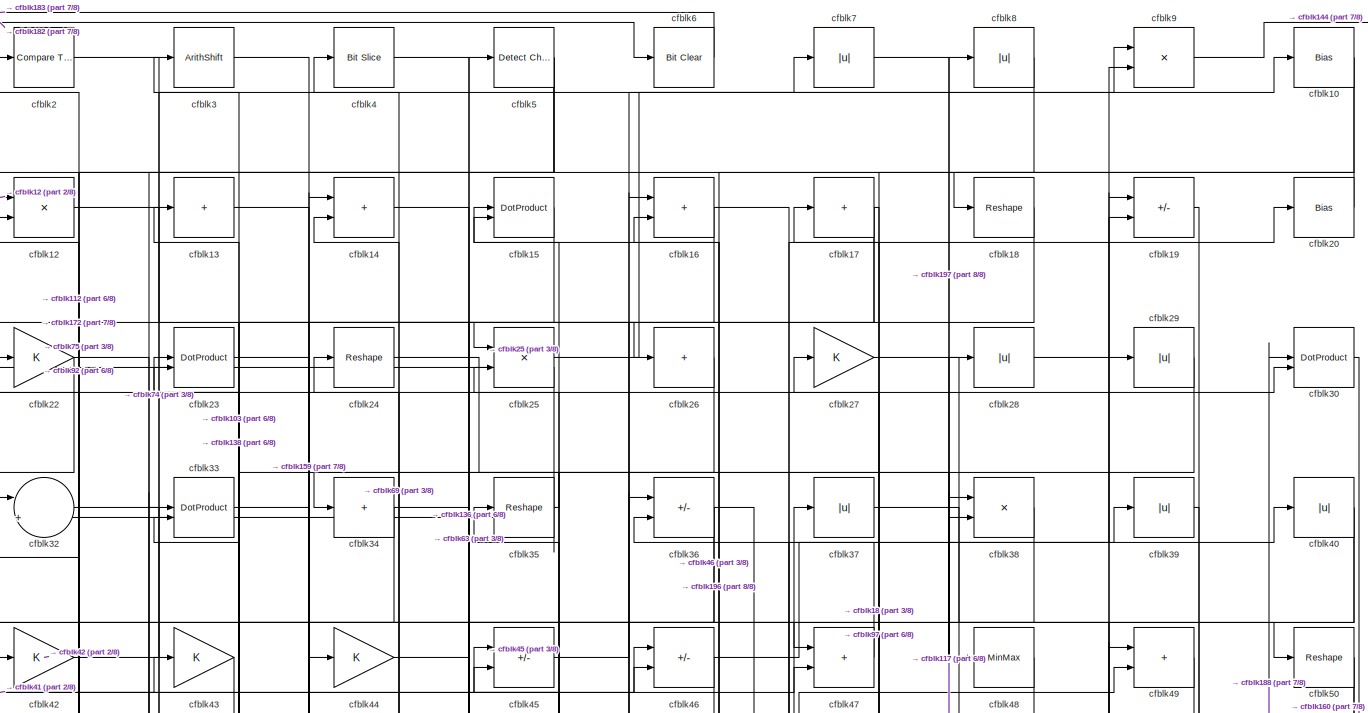
[diagram: root canvas - part 1/8, full width, top band]
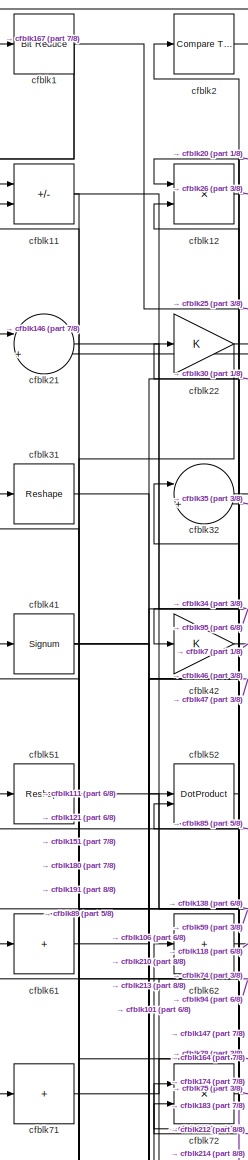
[diagram: root canvas - part 2/8, top left region]
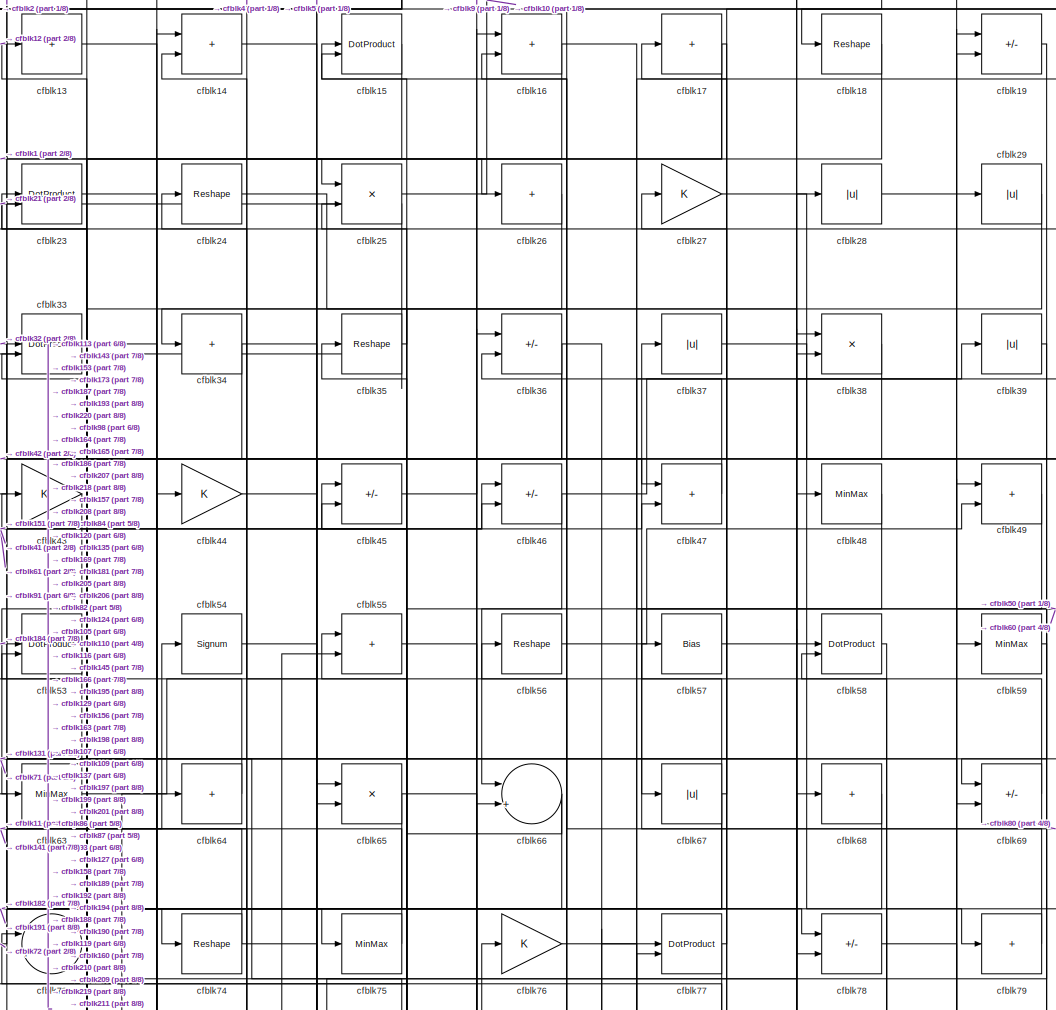
[diagram: root canvas - part 3/8, top center region]
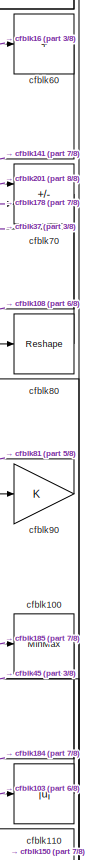
[diagram: root canvas - part 4/8, middle right region]
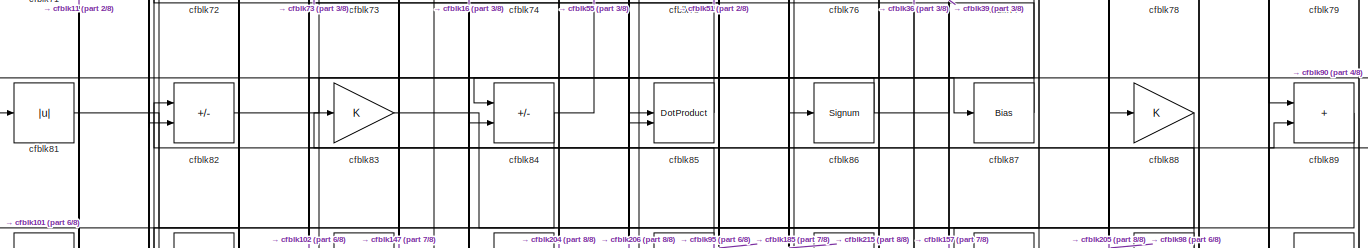
[diagram: root canvas - part 5/8, full width, middle band]
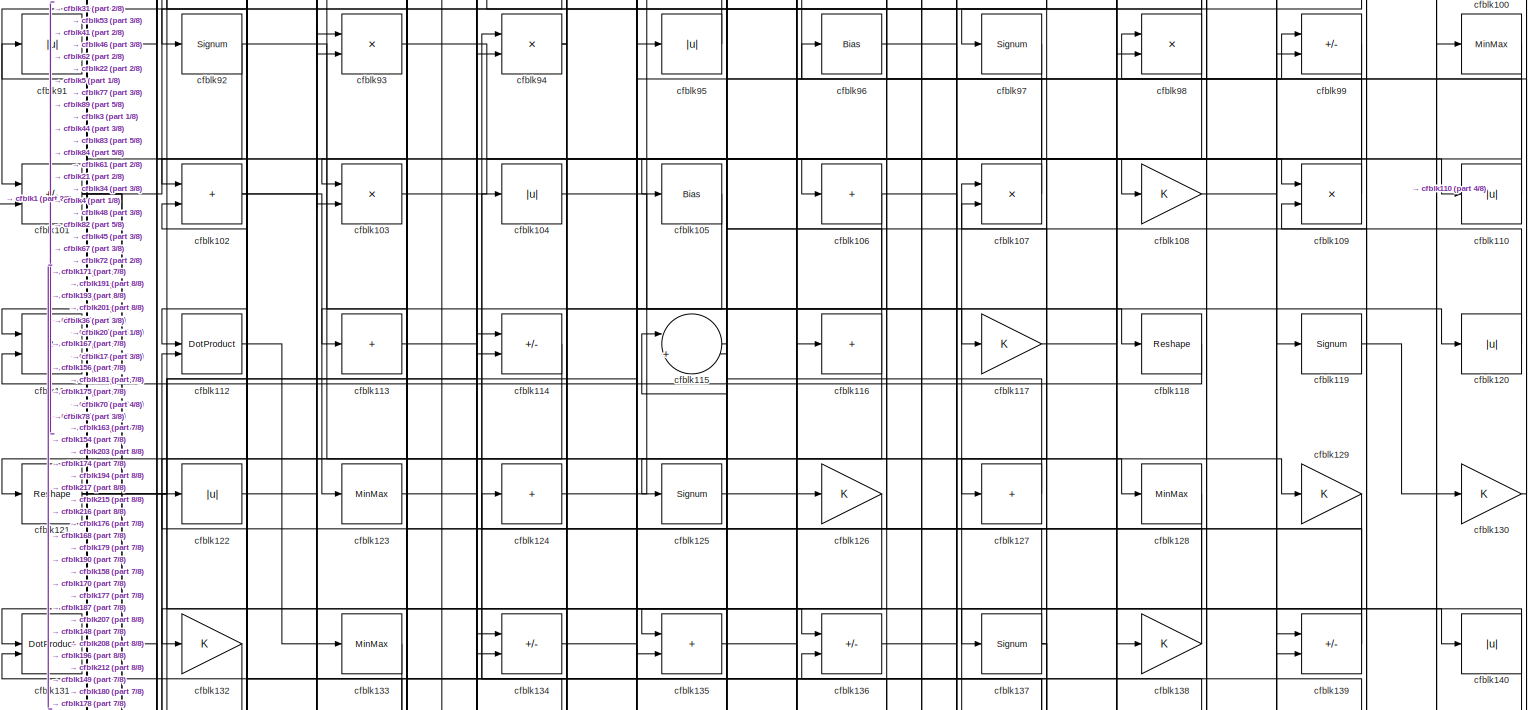
[diagram: root canvas - part 6/8, full width, middle band]
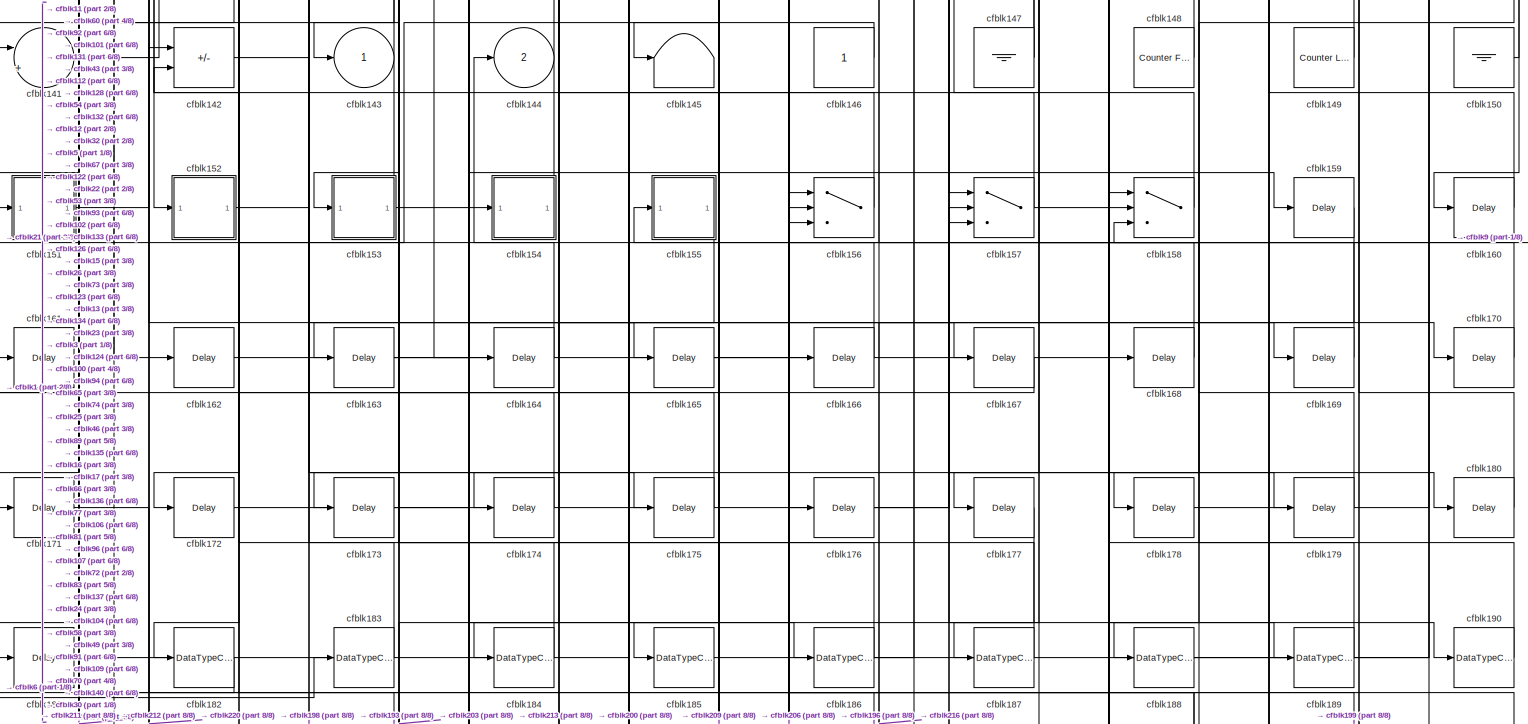
[diagram: root canvas - part 7/8, full width, bottom band]
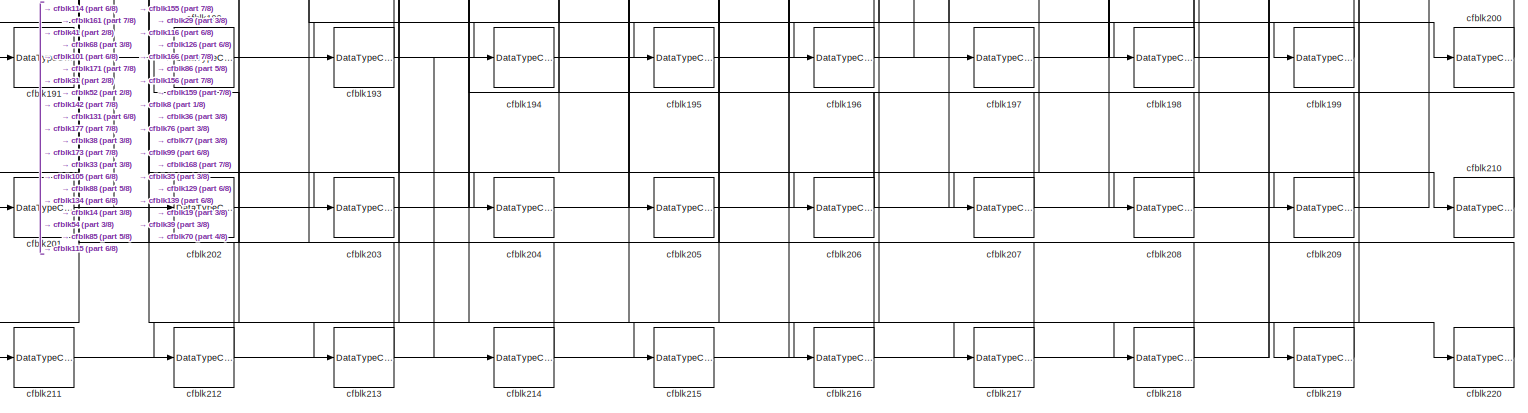
[diagram: root canvas - part 8/8, full width, bottom band]
MODEL slx_569c504e3ff3
KIND model
CONFIG AbsTol = auto
CONFIG EnableMultiTasking = off
CONFIG FixedStep = auto
CONFIG MaxStep = auto
CONFIG MinStep = auto
CONFIG RelTol = 1e-3
CONFIG SampleTimeConstraint = Unconstrained
CONFIG SolverName = VariableStepAuto
CONFIG StartTime = 0.0
CONFIG StopTime = 10.0
BLOCK [Reference] cfblk1  REF=hdlsllib/Logic and Bit
Operations/Bit Reduce
  SourceBlock = hdlsllib/Logic and Bit\nOperations/Bit Reduce
  SourceType = Bit Reduce
BLOCK [Bias] cfblk10
  Bias = 0.0
  SaturateOnIntegerOverflow = off
BLOCK [MinMax] cfblk100
BLOCK [Sum] cfblk101
  IconShape = rectangular
  Inputs = +-
BLOCK [Sum] cfblk102
  IconShape = rectangular
BLOCK [Product] cfblk103
  Inputs = */
  RndMeth = Zero
  SaturateOnIntegerOverflow = on
BLOCK [Abs] cfblk104
  SaturateOnIntegerOverflow = off
BLOCK [Bias] cfblk105
  Bias = 0.0
  SaturateOnIntegerOverflow = off
BLOCK [Sum] cfblk106
  IconShape = rectangular
  Inputs = +
BLOCK [Product] cfblk107
  Inputs = */
  RndMeth = Zero
  SaturateOnIntegerOverflow = on
BLOCK [Gain] cfblk108
BLOCK [Product] cfblk109
  Inputs = */
  RndMeth = Zero
  SaturateOnIntegerOverflow = on
BLOCK [Sum] cfblk11
  IconShape = rectangular
  Inputs = +-
BLOCK [Abs] cfblk110
  SaturateOnIntegerOverflow = off
BLOCK [Sum] cfblk111
  IconShape = rectangular
BLOCK [DotProduct] cfblk112
  OutDataTypeStr = Inherit: Inherit via internal rule
BLOCK [Sum] cfblk113
  IconShape = rectangular
  Inputs = +
BLOCK [Sum] cfblk114
  IconShape = rectangular
  Inputs = +-
BLOCK [Sum] cfblk115
  Inputs = |++
BLOCK [Sum] cfblk116
  IconShape = rectangular
  Inputs = +
BLOCK [Gain] cfblk117
BLOCK [Reshape] cfblk118
BLOCK [Signum] cfblk119
BLOCK [Product] cfblk12
  Inputs = */
  RndMeth = Zero
  SaturateOnIntegerOverflow = on
BLOCK [Abs] cfblk120
  SaturateOnIntegerOverflow = off
BLOCK [Reshape] cfblk121
BLOCK [Abs] cfblk122
  SaturateOnIntegerOverflow = off
BLOCK [MinMax] cfblk123
BLOCK [Sum] cfblk124
  IconShape = rectangular
  Inputs = +
BLOCK [Signum] cfblk125
BLOCK [Gain] cfblk126
BLOCK [Sum] cfblk127
  IconShape = rectangular
  Inputs = +
BLOCK [MinMax] cfblk128
BLOCK [Gain] cfblk129
BLOCK [Sum] cfblk13
  IconShape = rectangular
  Inputs = +
BLOCK [Gain] cfblk130
BLOCK [DotProduct] cfblk131
  OutDataTypeStr = Inherit: Inherit via internal rule
BLOCK [Gain] cfblk132
BLOCK [MinMax] cfblk133
BLOCK [Sum] cfblk134
  IconShape = rectangular
  Inputs = +-
BLOCK [Sum] cfblk135
  IconShape = rectangular
BLOCK [Sum] cfblk136
  IconShape = rectangular
  Inputs = +-
BLOCK [Signum] cfblk137
BLOCK [Gain] cfblk138
BLOCK [Sum] cfblk139
  IconShape = rectangular
  Inputs = +-
BLOCK [Sum] cfblk14
  IconShape = rectangular
BLOCK [Abs] cfblk140
  SaturateOnIntegerOverflow = off
BLOCK [Sum] cfblk141
  Inputs = |++
BLOCK [Sum] cfblk142
  IconShape = rectangular
  Inputs = +-
BLOCK [Outport] cfblk143
  VectorParamsAs1DForOutWhenUnconnected = off
BLOCK [Outport] cfblk144
  Port = 2
  VectorParamsAs1DForOutWhenUnconnected = off
BLOCK [Terminator] cfblk145
BLOCK [Constant] cfblk146
  SampleTime = -1
BLOCK [Ground] cfblk147
BLOCK [Reference] cfblk148  REF=hdlsllib/Sources/Counter
Free-Running
  SourceBlock = hdlsllib/Sources/Counter\nFree-Running
  SourceType = Counter Free-Running
BLOCK [Reference] cfblk149  REF=hdlsllib/Sources/Counter
Limited
  SourceBlock = hdlsllib/Sources/Counter\nLimited
  SourceType = Counter Limited
BLOCK [DotProduct] cfblk15
  OutDataTypeStr = Inherit: Inherit via internal rule
BLOCK [Ground] cfblk150
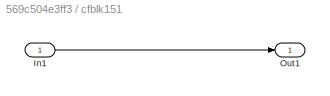
BLOCK [SubSystem] cfblk151
  LibrarySourceBlock = hdlsllib/Ports &\nSubsystems/Subsystem
BLOCK [Inport] cfblk151/In1
BLOCK [Outport] cfblk151/Out1
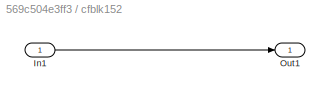
BLOCK [SubSystem] cfblk152
  LibrarySourceBlock = hdlsllib/Ports &\nSubsystems/Subsystem
BLOCK [Inport] cfblk152/In1
BLOCK [Outport] cfblk152/Out1
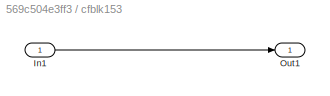
BLOCK [SubSystem] cfblk153
  LibrarySourceBlock = hdlsllib/Ports &\nSubsystems/Subsystem
BLOCK [Inport] cfblk153/In1
BLOCK [Outport] cfblk153/Out1
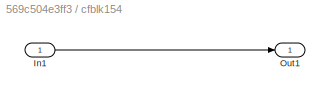
BLOCK [SubSystem] cfblk154
  LibrarySourceBlock = hdlsllib/Ports &\nSubsystems/Subsystem
BLOCK [Inport] cfblk154/In1
BLOCK [Outport] cfblk154/Out1
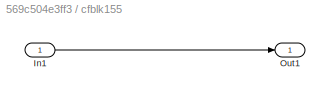
BLOCK [SubSystem] cfblk155
  LibrarySourceBlock = hdlsllib/Ports &\nSubsystems/Subsystem
BLOCK [Inport] cfblk155/In1
BLOCK [Outport] cfblk155/Out1
BLOCK [Switch] cfblk156
  InputSameDT = off
  SaturateOnIntegerOverflow = off
BLOCK [Switch] cfblk157
  InputSameDT = off
  SaturateOnIntegerOverflow = off
BLOCK [Switch] cfblk158
  InputSameDT = off
  SaturateOnIntegerOverflow = off
BLOCK [Delay] cfblk159
  InputPortMap = u0
  SampleTime = 1
BLOCK [Sum] cfblk16
  IconShape = rectangular
BLOCK [Delay] cfblk160
  InputPortMap = u0
  SampleTime = 1
BLOCK [Delay] cfblk161
  InputPortMap = u0
  SampleTime = 1
BLOCK [Delay] cfblk162
  InputPortMap = u0
  SampleTime = 1
BLOCK [Delay] cfblk163
  InputPortMap = u0
  SampleTime = 1
BLOCK [Delay] cfblk164
  InputPortMap = u0
  SampleTime = 1
BLOCK [Delay] cfblk165
  InputPortMap = u0
  SampleTime = 1
BLOCK [Delay] cfblk166
  InputPortMap = u0
  SampleTime = 1
BLOCK [Delay] cfblk167
  InputPortMap = u0
  SampleTime = 1
BLOCK [Delay] cfblk168
  InputPortMap = u0
  SampleTime = 1
BLOCK [Delay] cfblk169
  InputPortMap = u0
  SampleTime = 1
BLOCK [Sum] cfblk17
  IconShape = rectangular
  Inputs = +
BLOCK [Delay] cfblk170
  InputPortMap = u0
  SampleTime = 1
BLOCK [Delay] cfblk171
  InputPortMap = u0
  SampleTime = 1
BLOCK [Delay] cfblk172
  InputPortMap = u0
  SampleTime = 1
BLOCK [Delay] cfblk173
  InputPortMap = u0
  SampleTime = 1
BLOCK [Delay] cfblk174
  InputPortMap = u0
  SampleTime = 1
BLOCK [Delay] cfblk175
  InputPortMap = u0
  SampleTime = 1
BLOCK [Delay] cfblk176
  InputPortMap = u0
  SampleTime = 1
BLOCK [Delay] cfblk177
  InputPortMap = u0
  SampleTime = 1
BLOCK [Delay] cfblk178
  InputPortMap = u0
  SampleTime = 1
BLOCK [Delay] cfblk179
  InputPortMap = u0
  SampleTime = 1
BLOCK [Reshape] cfblk18
BLOCK [Delay] cfblk180
  InputPortMap = u0
  SampleTime = 1
BLOCK [Delay] cfblk181
  InputPortMap = u0
  SampleTime = 1
BLOCK [DataTypeConversion] cfblk182
  OutDataTypeStr = boolean
  RndMeth = Floor
  SaturateOnIntegerOverflow = off
BLOCK [DataTypeConversion] cfblk183
  OutDataTypeStr = uint8
  RndMeth = Floor
  SaturateOnIntegerOverflow = off
BLOCK [DataTypeConversion] cfblk184
  OutDataTypeStr = uint8
  RndMeth = Floor
  SaturateOnIntegerOverflow = off
BLOCK [DataTypeConversion] cfblk185
  OutDataTypeStr = uint8
  RndMeth = Floor
  SaturateOnIntegerOverflow = off
BLOCK [DataTypeConversion] cfblk186
  RndMeth = Floor
  SaturateOnIntegerOverflow = off
BLOCK [DataTypeConversion] cfblk187
  OutDataTypeStr = uint8
  RndMeth = Floor
  SaturateOnIntegerOverflow = off
BLOCK [DataTypeConversion] cfblk188
  OutDataTypeStr = uint8
  RndMeth = Floor
  SaturateOnIntegerOverflow = off
BLOCK [DataTypeConversion] cfblk189
  OutDataTypeStr = uint8
  RndMeth = Floor
  SaturateOnIntegerOverflow = off
BLOCK [Sum] cfblk19
  IconShape = rectangular
  Inputs = +-
BLOCK [DataTypeConversion] cfblk190
  OutDataTypeStr = uint8
  RndMeth = Floor
  SaturateOnIntegerOverflow = off
BLOCK [DataTypeConversion] cfblk191
  RndMeth = Floor
  SaturateOnIntegerOverflow = off
BLOCK [DataTypeConversion] cfblk192
  OutDataTypeStr = uint8
  RndMeth = Floor
  SaturateOnIntegerOverflow = off
BLOCK [DataTypeConversion] cfblk193
  RndMeth = Floor
  SaturateOnIntegerOverflow = off
BLOCK [DataTypeConversion] cfblk194
  OutDataTypeStr = uint8
  RndMeth = Floor
  SaturateOnIntegerOverflow = off
BLOCK [DataTypeConversion] cfblk195
  OutDataTypeStr = uint8
  RndMeth = Floor
  SaturateOnIntegerOverflow = off
BLOCK [DataTypeConversion] cfblk196
  RndMeth = Floor
  SaturateOnIntegerOverflow = off
BLOCK [DataTypeConversion] cfblk197
  OutDataTypeStr = uint8
  RndMeth = Floor
  SaturateOnIntegerOverflow = off
BLOCK [DataTypeConversion] cfblk198
  RndMeth = Floor
  SaturateOnIntegerOverflow = off
BLOCK [DataTypeConversion] cfblk199
  OutDataTypeStr = uint8
  RndMeth = Floor
  SaturateOnIntegerOverflow = off
BLOCK [Reference] cfblk2  REF=hdlsllib/Logic and Bit
Operations/Compare
To Constant
  SourceBlock = hdlsllib/Logic and Bit\nOperations/Compare\nTo Constant
  SourceType = Compare To Constant
BLOCK [Bias] cfblk20
  Bias = 0.0
  SaturateOnIntegerOverflow = off
BLOCK [DataTypeConversion] cfblk200
  OutDataTypeStr = uint8
  RndMeth = Floor
  SaturateOnIntegerOverflow = off
BLOCK [DataTypeConversion] cfblk201
  RndMeth = Floor
  SaturateOnIntegerOverflow = off
BLOCK [DataTypeConversion] cfblk202
  OutDataTypeStr = uint8
  RndMeth = Floor
  SaturateOnIntegerOverflow = off
BLOCK [DataTypeConversion] cfblk203
  OutDataTypeStr = uint8
  RndMeth = Floor
  SaturateOnIntegerOverflow = off
BLOCK [DataTypeConversion] cfblk204
  OutDataTypeStr = uint8
  RndMeth = Floor
  SaturateOnIntegerOverflow = off
BLOCK [DataTypeConversion] cfblk205
  OutDataTypeStr = uint8
  RndMeth = Floor
  SaturateOnIntegerOverflow = off
BLOCK [DataTypeConversion] cfblk206
  RndMeth = Floor
  SaturateOnIntegerOverflow = off
BLOCK [DataTypeConversion] cfblk207
  OutDataTypeStr = uint8
  RndMeth = Floor
  SaturateOnIntegerOverflow = off
BLOCK [DataTypeConversion] cfblk208
  OutDataTypeStr = uint8
  RndMeth = Floor
  SaturateOnIntegerOverflow = off
BLOCK [DataTypeConversion] cfblk209
  OutDataTypeStr = uint8
  RndMeth = Floor
  SaturateOnIntegerOverflow = off
BLOCK [Sum] cfblk21
  Inputs = |++
BLOCK [DataTypeConversion] cfblk210
  OutDataTypeStr = uint8
  RndMeth = Floor
  SaturateOnIntegerOverflow = off
BLOCK [DataTypeConversion] cfblk211
  OutDataTypeStr = uint8
  RndMeth = Floor
  SaturateOnIntegerOverflow = off
BLOCK [DataTypeConversion] cfblk212
  RndMeth = Floor
  SaturateOnIntegerOverflow = off
BLOCK [DataTypeConversion] cfblk213
  OutDataTypeStr = uint8
  RndMeth = Floor
  SaturateOnIntegerOverflow = off
BLOCK [DataTypeConversion] cfblk214
  OutDataTypeStr = uint8
  RndMeth = Floor
  SaturateOnIntegerOverflow = off
BLOCK [DataTypeConversion] cfblk215
  OutDataTypeStr = uint8
  RndMeth = Floor
  SaturateOnIntegerOverflow = off
BLOCK [DataTypeConversion] cfblk216
  OutDataTypeStr = uint8
  RndMeth = Floor
  SaturateOnIntegerOverflow = off
BLOCK [DataTypeConversion] cfblk217
  OutDataTypeStr = uint8
  RndMeth = Floor
  SaturateOnIntegerOverflow = off
BLOCK [DataTypeConversion] cfblk218
  OutDataTypeStr = uint8
  RndMeth = Floor
  SaturateOnIntegerOverflow = off
BLOCK [DataTypeConversion] cfblk219
  OutDataTypeStr = uint8
  RndMeth = Floor
  SaturateOnIntegerOverflow = off
BLOCK [Gain] cfblk22
BLOCK [DataTypeConversion] cfblk220
  OutDataTypeStr = uint8
  RndMeth = Floor
  SaturateOnIntegerOverflow = off
BLOCK [DotProduct] cfblk23
  OutDataTypeStr = Inherit: Inherit via internal rule
BLOCK [Reshape] cfblk24
BLOCK [Product] cfblk25
  Inputs = */
  RndMeth = Zero
  SaturateOnIntegerOverflow = on
BLOCK [Sum] cfblk26
  IconShape = rectangular
  Inputs = +
BLOCK [Gain] cfblk27
BLOCK [Abs] cfblk28
  SaturateOnIntegerOverflow = off
BLOCK [Abs] cfblk29
  SaturateOnIntegerOverflow = off
BLOCK [ArithShift] cfblk3
  BitShiftNumber = 8
  InputPortMap = u0
BLOCK [DotProduct] cfblk30
  OutDataTypeStr = Inherit: Inherit via internal rule
BLOCK [Reshape] cfblk31
BLOCK [Sum] cfblk32
  Inputs = |++
BLOCK [DotProduct] cfblk33
  OutDataTypeStr = Inherit: Inherit via internal rule
BLOCK [Sum] cfblk34
  IconShape = rectangular
  Inputs = +
BLOCK [Reshape] cfblk35
BLOCK [Sum] cfblk36
  IconShape = rectangular
  Inputs = +-
BLOCK [Abs] cfblk37
  SaturateOnIntegerOverflow = off
BLOCK [Product] cfblk38
  Inputs = */
  RndMeth = Zero
  SaturateOnIntegerOverflow = on
BLOCK [Abs] cfblk39
  SaturateOnIntegerOverflow = off
BLOCK [Reference] cfblk4  REF=hdlsllib/Logic and Bit
Operations/Bit Slice
  SourceBlock = hdlsllib/Logic and Bit\nOperations/Bit Slice
  SourceType = Bit Slice
BLOCK [Abs] cfblk40
  SaturateOnIntegerOverflow = off
BLOCK [Signum] cfblk41
BLOCK [Gain] cfblk42
BLOCK [Gain] cfblk43
BLOCK [Gain] cfblk44
BLOCK [Sum] cfblk45
  IconShape = rectangular
  Inputs = +-
BLOCK [Sum] cfblk46
  IconShape = rectangular
  Inputs = +-
BLOCK [Sum] cfblk47
  IconShape = rectangular
BLOCK [MinMax] cfblk48
BLOCK [Sum] cfblk49
  IconShape = rectangular
BLOCK [Reference] cfblk5  REF=simulink/Logic and Bit
Operations/Detect
Change
  LibrarySourceBlock = hdlsllib/Logic and Bit\nOperations/Detect\nChange
  SourceBlock = simulink/Logic and Bit\nOperations/Detect\nChange
  SourceType = Detect Change
BLOCK [Reshape] cfblk50
BLOCK [Reshape] cfblk51
BLOCK [DotProduct] cfblk52
  OutDataTypeStr = Inherit: Inherit via internal rule
BLOCK [DotProduct] cfblk53
  OutDataTypeStr = Inherit: Inherit via internal rule
BLOCK [Signum] cfblk54
BLOCK [Sum] cfblk55
  IconShape = rectangular
BLOCK [Reshape] cfblk56
BLOCK [Bias] cfblk57
  Bias = 0.0
  SaturateOnIntegerOverflow = off
BLOCK [DotProduct] cfblk58
  OutDataTypeStr = Inherit: Inherit via internal rule
BLOCK [MinMax] cfblk59
BLOCK [Reference] cfblk6  REF=simulink/Logic and Bit
Operations/Bit Clear
  LibrarySourceBlock = hdlsllib/Logic and Bit\nOperations/Bit Clear
  SourceBlock = simulink/Logic and Bit\nOperations/Bit Clear
  SourceType = Bit Clear
BLOCK [Sum] cfblk60
  IconShape = rectangular
  Inputs = +
BLOCK [Sum] cfblk61
  IconShape = rectangular
  Inputs = +
BLOCK [Sum] cfblk62
  IconShape = rectangular
  Inputs = +
BLOCK [MinMax] cfblk63
BLOCK [Sum] cfblk64
  IconShape = rectangular
  Inputs = +
BLOCK [Product] cfblk65
  Inputs = */
  RndMeth = Zero
  SaturateOnIntegerOverflow = on
BLOCK [Sum] cfblk66
  Inputs = |++
BLOCK [Abs] cfblk67
  SaturateOnIntegerOverflow = off
BLOCK [Sum] cfblk68
  IconShape = rectangular
  Inputs = +
BLOCK [Sum] cfblk69
  IconShape = rectangular
  Inputs = +-
BLOCK [Abs] cfblk7
  SaturateOnIntegerOverflow = off
BLOCK [Sum] cfblk70
  IconShape = rectangular
  Inputs = +-
BLOCK [Sum] cfblk71
  IconShape = rectangular
  Inputs = +
BLOCK [Product] cfblk72
  Inputs = */
  RndMeth = Zero
  SaturateOnIntegerOverflow = on
BLOCK [Sum] cfblk73
  Inputs = |++
BLOCK [Reshape] cfblk74
BLOCK [MinMax] cfblk75
BLOCK [Gain] cfblk76
BLOCK [DotProduct] cfblk77
  OutDataTypeStr = Inherit: Inherit via internal rule
BLOCK [Sum] cfblk78
  IconShape = rectangular
  Inputs = +-
BLOCK [Sum] cfblk79
  IconShape = rectangular
  Inputs = +
BLOCK [Abs] cfblk8
  SaturateOnIntegerOverflow = off
BLOCK [Reshape] cfblk80
BLOCK [Abs] cfblk81
  SaturateOnIntegerOverflow = off
BLOCK [Sum] cfblk82
  IconShape = rectangular
  Inputs = +-
BLOCK [Gain] cfblk83
BLOCK [Sum] cfblk84
  IconShape = rectangular
  Inputs = +-
BLOCK [DotProduct] cfblk85
  OutDataTypeStr = Inherit: Inherit via internal rule
BLOCK [Signum] cfblk86
BLOCK [Bias] cfblk87
  Bias = 0.0
  SaturateOnIntegerOverflow = off
BLOCK [Gain] cfblk88
BLOCK [Sum] cfblk89
  IconShape = rectangular
BLOCK [Product] cfblk9
  Inputs = */
  RndMeth = Zero
  SaturateOnIntegerOverflow = on
BLOCK [Gain] cfblk90
BLOCK [Abs] cfblk91
  SaturateOnIntegerOverflow = off
BLOCK [Signum] cfblk92
BLOCK [Product] cfblk93
  Inputs = */
  RndMeth = Zero
  SaturateOnIntegerOverflow = on
BLOCK [Product] cfblk94
  Inputs = */
  RndMeth = Zero
  SaturateOnIntegerOverflow = on
BLOCK [Abs] cfblk95
  SaturateOnIntegerOverflow = off
BLOCK [Bias] cfblk96
  Bias = 0.0
  SaturateOnIntegerOverflow = off
BLOCK [Signum] cfblk97
BLOCK [Product] cfblk98
  Inputs = */
  RndMeth = Zero
  SaturateOnIntegerOverflow = on
BLOCK [Sum] cfblk99
  IconShape = rectangular
  Inputs = +-
LINE cfblk100:1 -> cfblk184:1
NET cfblk101:1 -> cfblk162:1, cfblk202:1, cfblk62:1
NET cfblk102:1 -> cfblk123:1, cfblk89:2
LINE cfblk103:1 -> cfblk110:1
LINE cfblk104:1 -> cfblk117:1
LINE cfblk105:1 -> cfblk194:1
NET cfblk106:1 -> cfblk125:1, cfblk190:1
LINE cfblk107:1 -> cfblk76:1
LINE cfblk108:1 -> cfblk90:1
LINE cfblk109:1 -> cfblk56:1
NET cfblk10:1 -> cfblk18:1, cfblk97:1
LINE cfblk110:1 -> cfblk45:2
LINE cfblk111:1 -> cfblk31:1
LINE cfblk112:1 -> cfblk133:1
LINE cfblk113:1 -> cfblk44:1
LINE cfblk114:1 -> cfblk201:1
LINE cfblk115:1 -> cfblk215:1
NET cfblk116:1 -> cfblk132:1, cfblk45:1
LINE cfblk117:1 -> cfblk40:1
LINE cfblk118:1 -> cfblk111:2
LINE cfblk119:1 -> cfblk130:1
NET cfblk11:1 -> cfblk151:1, cfblk89:1
LINE cfblk120:1 -> cfblk55:1
NET cfblk121:1 -> cfblk140:1, cfblk94:2, cfblk96:1
LINE cfblk122:1 -> cfblk175:1
LINE cfblk123:1 -> cfblk154:1
LINE cfblk124:1 -> cfblk48:1
LINE cfblk125:1 -> cfblk99:1
LINE cfblk126:1 -> cfblk163:1
LINE cfblk127:1 -> cfblk72:1
LINE cfblk128:1 -> cfblk152:1
LINE cfblk129:1 -> cfblk208:1
LINE cfblk12:1 -> cfblk26:1
LINE cfblk130:1 -> cfblk98:1
LINE cfblk131:1 -> cfblk167:1
LINE cfblk132:1 -> cfblk181:1
LINE cfblk133:1 -> cfblk141:1
LINE cfblk134:1 -> cfblk217:1
LINE cfblk135:1 -> cfblk176:1
LINE cfblk136:1 -> cfblk20:1
NET cfblk137:1 -> cfblk177:1, cfblk187:1, cfblk36:2
LINE cfblk138:1 -> cfblk3:1
NET cfblk139:1 -> cfblk122:1, cfblk94:1
LINE cfblk13:1 -> cfblk186:1
NET cfblk140:1 -> cfblk137:1, cfblk178:1
LINE cfblk141:1 -> cfblk54:1
LINE cfblk142:1 -> cfblk198:1
LINE cfblk146:1 -> cfblk21:1
NET cfblk147:1 -> cfblk72:2, cfblk83:1
LINE cfblk148:1 -> cfblk104:1
LINE cfblk149:1 -> cfblk91:1
LINE cfblk14:1 -> cfblk206:1
LINE cfblk150:1 -> cfblk80:1
LINE cfblk151/In1:1 -> cfblk151/Out1:1
LINE cfblk151:1 -> cfblk43:1
LINE cfblk152/In1:1 -> cfblk152/Out1:1
LINE cfblk152:1 -> cfblk170:1
LINE cfblk153/In1:1 -> cfblk153/Out1:1
NET cfblk153:1 -> cfblk102:2, cfblk134:1
LINE cfblk154/In1:1 -> cfblk154/Out1:1
LINE cfblk154:1 -> cfblk124:1
LINE cfblk155/In1:1 -> cfblk155/Out1:1
LINE cfblk155:1 -> cfblk213:1
LINE cfblk156:1 -> cfblk112:2
NET cfblk157:1 -> cfblk189:1, cfblk24:1
LINE cfblk158:1 -> cfblk107:1
LINE cfblk159:1 -> cfblk216:1
LINE cfblk15:1 -> cfblk143:1
LINE cfblk160:1 -> cfblk49:1
LINE cfblk161:1 -> cfblk211:1
LINE cfblk162:1 -> cfblk134:2
LINE cfblk163:1 -> cfblk66:2
LINE cfblk164:1 -> cfblk12:2
LINE cfblk165:1 -> cfblk158:2
LINE cfblk166:1 -> cfblk25:2
LINE cfblk167:1 -> cfblk1:1
LINE cfblk168:1 -> cfblk136:2
LINE cfblk169:1 -> cfblk16:1
NET cfblk16:1 -> cfblk60:1, cfblk84:2
LINE cfblk170:1 -> cfblk107:2
LINE cfblk171:1 -> cfblk220:1
LINE cfblk172:1 -> cfblk157:3
LINE cfblk173:1 -> cfblk200:1
LINE cfblk174:1 -> cfblk32:1
LINE cfblk175:1 -> cfblk93:1
LINE cfblk176:1 -> cfblk157:2
LINE cfblk177:1 -> cfblk203:1
LINE cfblk178:1 -> cfblk70:2
LINE cfblk179:1 -> cfblk158:3
NET cfblk17:1 -> cfblk127:1, cfblk156:3, cfblk173:1
LINE cfblk180:1 -> cfblk109:2
LINE cfblk181:1 -> cfblk65:1
LINE cfblk182:1 -> cfblk6:1
LINE cfblk183:1 -> cfblk22:1
LINE cfblk184:1 -> cfblk53:1
LINE cfblk185:1 -> cfblk100:1
NET cfblk186:1 -> cfblk53:2, cfblk77:1
LINE cfblk187:1 -> cfblk13:1
LINE cfblk188:1 -> cfblk30:1
LINE cfblk189:1 -> cfblk58:1
LINE cfblk18:1 -> cfblk65:2
LINE cfblk190:1 -> cfblk58:2
NET cfblk191:1 -> cfblk116:1, cfblk41:1
LINE cfblk192:1 -> cfblk68:1
NET cfblk193:1 -> cfblk131:2, cfblk166:1, cfblk168:1, cfblk214:1
LINE cfblk194:1 -> cfblk38:1
LINE cfblk195:1 -> cfblk38:2
NET cfblk196:1 -> cfblk139:2, cfblk156:1
LINE cfblk197:1 -> cfblk8:1
NET cfblk198:1 -> cfblk35:1, cfblk36:1
LINE cfblk199:1 -> cfblk142:1
LINE cfblk19:1 -> cfblk209:1
NET cfblk1:1 -> cfblk101:2, cfblk11:1, cfblk25:1
LINE cfblk200:1 -> cfblk142:2
NET cfblk201:1 -> cfblk126:1, cfblk70:1, cfblk77:2
LINE cfblk202:1 -> cfblk114:1
LINE cfblk203:1 -> cfblk114:2
LINE cfblk204:1 -> cfblk85:2
LINE cfblk205:1 -> cfblk88:1
NET cfblk206:1 -> cfblk156:2, cfblk85:1
LINE cfblk207:1 -> cfblk14:1
LINE cfblk208:1 -> cfblk14:2
LINE cfblk209:1 -> cfblk155:1
LINE cfblk20:1 -> cfblk12:1
LINE cfblk210:1 -> cfblk19:1
LINE cfblk211:1 -> cfblk19:2
NET cfblk212:1 -> cfblk161:1, cfblk99:2
LINE cfblk213:1 -> cfblk52:1
LINE cfblk214:1 -> cfblk52:2
LINE cfblk215:1 -> cfblk86:1
LINE cfblk216:1 -> cfblk115:1
LINE cfblk217:1 -> cfblk115:2
LINE cfblk218:1 -> cfblk192:1
LINE cfblk219:1 -> cfblk33:1
LINE cfblk21:1 -> cfblk95:1
LINE cfblk220:1 -> cfblk33:2
NET cfblk22:1 -> cfblk121:1, cfblk180:1
LINE cfblk23:1 -> cfblk165:1
LINE cfblk24:1 -> cfblk158:1
LINE cfblk25:1 -> cfblk10:1
LINE cfblk26:1 -> cfblk153:1
LINE cfblk27:1 -> cfblk79:1
LINE cfblk28:1 -> cfblk29:1
LINE cfblk29:1 -> cfblk195:1
LINE cfblk2:1 -> cfblk74:1
LINE cfblk30:1 -> cfblk160:1
LINE cfblk31:1 -> cfblk210:1
LINE cfblk32:1 -> cfblk78:2
LINE cfblk33:1 -> cfblk218:1
NET cfblk34:1 -> cfblk120:1, cfblk42:1
NET cfblk35:1 -> cfblk15:2, cfblk21:2, cfblk32:2
NET cfblk36:1 -> cfblk135:2, cfblk197:1, cfblk82:2
LINE cfblk37:1 -> cfblk59:1
LINE cfblk38:1 -> cfblk193:1
LINE cfblk39:1 -> cfblk219:1
LINE cfblk3:1 -> cfblk159:1
NET cfblk40:1 -> cfblk103:1, cfblk112:1
NET cfblk41:1 -> cfblk106:1, cfblk30:2, cfblk47:2
LINE cfblk42:1 -> cfblk7:1
LINE cfblk43:1 -> cfblk63:1
LINE cfblk44:1 -> cfblk47:1
LINE cfblk45:1 -> cfblk9:1
NET cfblk46:1 -> cfblk145:1, cfblk9:2
LINE cfblk47:1 -> cfblk16:2
LINE cfblk48:1 -> cfblk67:1
LINE cfblk49:1 -> cfblk66:1
LINE cfblk4:1 -> cfblk136:1
NET cfblk50:1 -> cfblk69:1, cfblk69:2
LINE cfblk51:1 -> cfblk138:1
LINE cfblk52:1 -> cfblk212:1
LINE cfblk53:1 -> cfblk131:1
LINE cfblk54:1 -> cfblk205:1
LINE cfblk55:1 -> cfblk129:1
LINE cfblk56:1 -> cfblk49:2
LINE cfblk57:1 -> cfblk28:1
LINE cfblk58:1 -> cfblk188:1
LINE cfblk59:1 -> cfblk71:1
NET cfblk5:1 -> cfblk103:2, cfblk172:1, cfblk92:1
LINE cfblk60:1 -> cfblk141:2
LINE cfblk61:1 -> cfblk46:1
LINE cfblk62:1 -> cfblk118:1
LINE cfblk63:1 -> cfblk5:1
LINE cfblk64:1 -> cfblk23:1
NET cfblk65:1 -> cfblk109:1, cfblk113:1
NET cfblk66:1 -> cfblk34:1, cfblk73:2
NET cfblk67:1 -> cfblk105:1, cfblk182:1, cfblk27:1, cfblk57:1
LINE cfblk68:1 -> cfblk191:1
LINE cfblk69:1 -> cfblk4:1
LINE cfblk6:1 -> cfblk183:1
LINE cfblk70:1 -> cfblk108:1
LINE cfblk71:1 -> cfblk78:1
LINE cfblk72:1 -> cfblk75:1
NET cfblk73:1 -> cfblk164:1, cfblk64:1
NET cfblk74:1 -> cfblk11:2, cfblk169:1
LINE cfblk75:1 -> cfblk2:1
LINE cfblk76:1 -> cfblk199:1
NET cfblk77:1 -> cfblk17:1, cfblk93:2
LINE cfblk78:1 -> cfblk119:1
LINE cfblk79:1 -> cfblk15:1
LINE cfblk7:1 -> cfblk50:1
LINE cfblk80:1 -> cfblk37:1
LINE cfblk81:1 -> cfblk157:1
LINE cfblk82:1 -> cfblk87:1
LINE cfblk83:1 -> cfblk98:2
NET cfblk84:1 -> cfblk101:1, cfblk55:2
LINE cfblk85:1 -> cfblk51:1
NET cfblk86:1 -> cfblk39:1, cfblk84:1
LINE cfblk87:1 -> cfblk73:1
LINE cfblk88:1 -> cfblk204:1
LINE cfblk89:1 -> cfblk185:1
LINE cfblk8:1 -> cfblk196:1
LINE cfblk90:1 -> cfblk81:1
NET cfblk91:1 -> cfblk111:1, cfblk46:2
NET cfblk92:1 -> cfblk128:1, cfblk171:1
LINE cfblk93:1 -> cfblk139:1
NET cfblk94:1 -> cfblk174:1, cfblk61:1
LINE cfblk95:1 -> cfblk82:1
LINE cfblk96:1 -> cfblk179:1
LINE cfblk97:1 -> cfblk135:1
NET cfblk98:1 -> cfblk102:1, cfblk23:2
LINE cfblk99:1 -> cfblk207:1
LINE cfblk9:1 -> cfblk144:1
note: NET lines group one-source signal fan-out (src -> all destinations, sorted); 1:1 wires keep LINE
